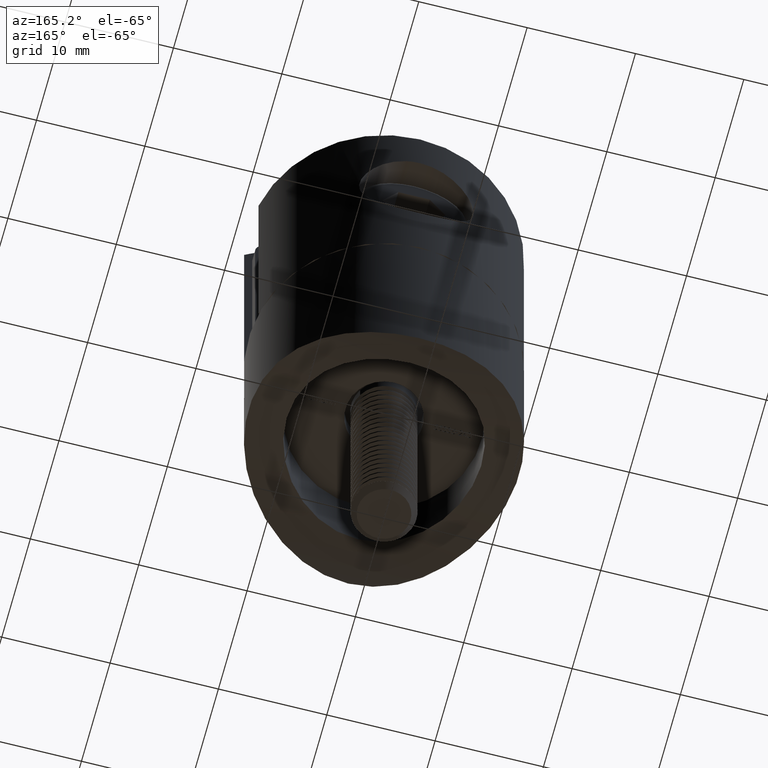
[diagram: clean part render]
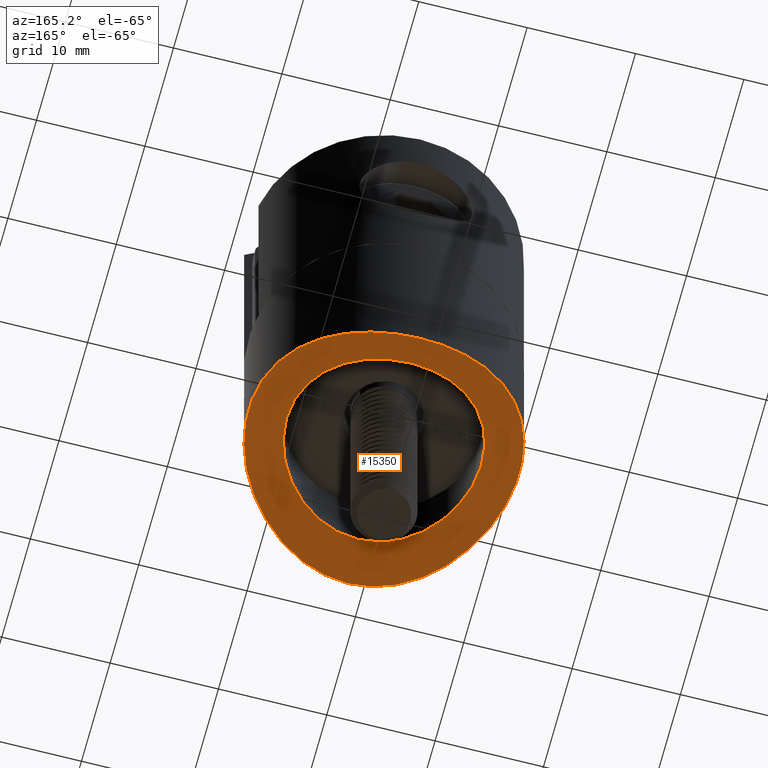
[diagram: same view with one face highlighted and labeled with its STEP entity id]
A machine part, auxiliary view. The second image highlights one B-rep face of the part: STEP entity #15350.
In plain terms, the highlighted cylindrical surface (partial cylindrical patch) has radius 21.2 mm, axis along (1, 0, 0).
Its self-contained STEP definition (entity closure, byte-faithful):
#155 = CARTESIAN_POINT ( 'NONE',  ( -12.41822876017532984, -1.652545722798589134, -0.04853384307513768092 ) ) ;
#570 = CARTESIAN_POINT ( 'NONE',  ( 6.505213034913026604E-16, -12.50000000000000000, -4.077208171562672234 ) ) ;
#647 = CARTESIAN_POINT ( 'NONE',  ( 12.48106748370101116, 0.8054532927876552062, -0.01118350309362116900 ) ) ;
#724 = CARTESIAN_POINT ( 'NONE',  ( 12.05574095154471159, -3.329120898588413979, -0.2591194088304896725 ) ) ;
#809 = CARTESIAN_POINT ( 'NONE',  ( 9.368375596618125911, -8.285220845044319660, -1.683172826441550862 ) ) ;
#941 = EDGE_LOOP ( 'NONE', ( #7457 ) ) ;
#948 = DIRECTION ( 'NONE',  ( 0.000000000000000000, 0.000000000000000000, -1.000000000000000000 ) ) ;
#1046 = CARTESIAN_POINT ( 'NONE',  ( -11.18372281719146599, 5.643309527002701387, -0.7501887332159620225 ) ) ;
#1178 = CARTESIAN_POINT ( 'NONE',  ( -8.546432821536305013, -9.130588656031044081, -2.064470097487321354 ) ) ;
#1254 = CARTESIAN_POINT ( 'NONE',  ( -2.086642909512068655, -12.33156205190913113, -3.955209103211670296 ) ) ;
#1288 = CARTESIAN_POINT ( 'NONE',  ( 5.491527681049623411, -7.136393349933625174, -1.236275164817629335 ) ) ;
#1443 = CARTESIAN_POINT ( 'NONE',  ( 4.523650702319244488, 7.786055058421185393, -1.480978259992662416 ) ) ;
#1522 = CARTESIAN_POINT ( 'NONE',  ( -3.998611255628528927, 8.068293523425873914, -1.594769083929055142 ) ) ;
#1600 = CARTESIAN_POINT ( 'NONE',  ( -8.707229325129510755, -2.354678229249710153, -0.1228942172591542120 ) ) ;
#1644 = AXIS2_PLACEMENT_3D ( 'NONE', #8045, #20500, #948 ) ;
#1672 = CARTESIAN_POINT ( 'NONE',  ( -8.533584350906092908, -2.919603497746501741, -0.1947885813183747594 ) ) ;
#1748 = CARTESIAN_POINT ( 'NONE',  ( -0.2839722160764792669, 9.000400974029082235, -2.005397047312543091 ) ) ;
#2271 = CARTESIAN_POINT ( 'NONE',  ( -11.80920847800567408, 4.118886920590427714, -0.4000696832098594724 ) ) ;
#2378 = CARTESIAN_POINT ( 'NONE',  ( 4.131024785211030448, 11.80488271887764817, -3.590143210648292893 ) ) ;
#2456 = CARTESIAN_POINT ( 'NONE',  ( 8.269659684127894650, 9.382022416828275979, -2.186865792286954768 ) ) ;
#2536 = CARTESIAN_POINT ( 'NONE',  ( 10.80110207316818816, -6.342979572200273530, -0.9588347506110875829 ) ) ;
#2613 = CARTESIAN_POINT ( 'NONE',  ( 5.593301396689095206, -11.20825000499162805, -3.201227598209253955 ) ) ;
#3055 = CARTESIAN_POINT ( 'NONE',  ( -4.480559060405536087, -11.67646838110314533, -3.504365640275209692 ) ) ;
#3165 = CARTESIAN_POINT ( 'NONE',  ( 2.917802884023282139, -8.519085452557783711, -1.786750800336529554 ) ) ;
#3207 = CARTESIAN_POINT ( 'NONE',  ( -9.393693742237582356, -8.285238113159397955, -1.676182626580184021 ) ) ;
#3243 = CARTESIAN_POINT ( 'NONE',  ( -5.933833905163504063, 6.773075127230494985, -1.110108331659413361 ) ) ;
#3281 = CARTESIAN_POINT ( 'NONE',  ( -11.83994799044254798, -4.091362508897725903, -0.3840295396466786304 ) ) ;
#3313 = CARTESIAN_POINT ( 'NONE',  ( -5.256110834363022732, -7.311472419907169673, -1.299942953120396538 ) ) ;
#3390 = CARTESIAN_POINT ( 'NONE',  ( -4.532705707074542012, -7.796916004019784907, -1.482807033181334555 ) ) ;
#3466 = CARTESIAN_POINT ( 'NONE',  ( -1.491469006224786842, -8.880462410946027063, -1.949506213162342627 ) ) ;
#3505 = CARTESIAN_POINT ( 'NONE',  ( -8.242993244431671584, 9.430799355707717879, -2.203067516403551807 ) ) ;
#3539 = CARTESIAN_POINT ( 'NONE',  ( -8.702862009132207533, 2.369100941744510358, -0.1246985401672113247 ) ) ;
#3574 = VERTEX_POINT ( 'NONE', #6882 ) ;
#4084 = CARTESIAN_POINT ( 'NONE',  ( 11.68640455965283920, 4.454949791073032905, -0.4697153782734217464 ) ) ;
#4160 = CARTESIAN_POINT ( 'NONE',  ( 6.300445486796585115, -10.82614136634492219, -2.965394789012346877 ) ) ;
#4242 = CARTESIAN_POINT ( 'NONE',  ( 2.937046760329241835, 12.15715828628347417, -3.831807272722342006 ) ) ;
#4316 = CARTESIAN_POINT ( 'NONE',  ( 12.39903987740901670, 1.640003249381589701, -0.05939714936084879854 ) ) ;
#4393 = CARTESIAN_POINT ( 'NONE',  ( 11.21002534183689647, 5.591050753373651538, -0.7357564511096464921 ) ) ;
#4644 = CARTESIAN_POINT ( 'NONE',  ( 8.075779872960259453, -4.015580886328729449, -0.3765727242498756455 ) ) ;
#4805 = CARTESIAN_POINT ( 'NONE',  ( 2.062165950460747688, -8.765548746403904801, -1.896910775638060098 ) ) ;
#4849 = CARTESIAN_POINT ( 'NONE',  ( -8.250334600383300909, -9.399126279219142788, -2.195298408733290518 ) ) ;
#4883 = CARTESIAN_POINT ( 'NONE',  ( 0.6022301676324365305, -8.999999999999998224, -2.005209039950443639 ) ) ;
#4917 = CARTESIAN_POINT ( 'NONE',  ( -12.05665895762295925, 3.325599062001045603, -0.2585883587864531985 ) ) ;
#4926 = CARTESIAN_POINT ( 'NONE',  ( -7.629375070975932260, -9.909804834473819213, -2.456520453009731764 ) ) ;
#4959 = CARTESIAN_POINT ( 'NONE',  ( 8.415055338208810909, -3.205093018567958918, -0.2418898255805831121 ) ) ;
#5005 = CARTESIAN_POINT ( 'NONE',  ( -10.81529640315649843, -6.319962272150770666, -0.9513266711968723088 ) ) ;
#5039 = CARTESIAN_POINT ( 'NONE',  ( -8.924876651340714062, 1.198462509687670652, -0.03180013284765392800 ) ) ;
#5114 = CARTESIAN_POINT ( 'NONE',  ( -0.5808486025061181390, 8.986205239822108837, -1.998720092987608332 ) ) ;
#5193 = CARTESIAN_POINT ( 'NONE',  ( 4.777164185214713754, 7.633095921920670435, -1.421066813696615583 ) ) ;
#5275 = CARTESIAN_POINT ( 'NONE',  ( -7.141587104885534387, 5.507888469158014999, -0.7219518028728219017 ) ) ;
#5350 = CARTESIAN_POINT ( 'NONE',  ( -8.999731393797212320, 0.3048979933382154894, -0.0001140308981456247171 ) ) ;
#5908 = CARTESIAN_POINT ( 'NONE',  ( 11.66462809805585188, -4.511375195985528386, -0.4819869156375445329 ) ) ;
#5984 = CARTESIAN_POINT ( 'NONE',  ( 9.126169483825913531, 8.551099590638671089, -1.798593104265829190 ) ) ;
#6061 = CARTESIAN_POINT ( 'NONE',  ( 9.099289853513122139, -8.579684125939735395, -1.811232351458165191 ) ) ;
#6139 = CARTESIAN_POINT ( 'NONE',  ( -4.062392419382787168, 11.82874411193930975, -3.606179466901592523 ) ) ;
#6220 = CARTESIAN_POINT ( 'NONE',  ( 9.394115780166798046, 8.255981417790513532, -1.670787631124504458 ) ) ;
#6461 = CARTESIAN_POINT ( 'NONE',  ( 7.131813691955861678, -5.497450429022885388, -0.7238557494452504404 ) ) ;
#6576 = CARTESIAN_POINT ( 'NONE',  ( -6.308790992747932869, -10.82083566512655715, -2.962347893959514700 ) ) ;
#6762 = CARTESIAN_POINT ( 'NONE',  ( 8.689940755913463377, -2.360735361079839834, -0.1299090374202212239 ) ) ;
#6805 = CARTESIAN_POINT ( 'NONE',  ( -2.898264919438248377, -12.16641120991132219, -3.838298643699025181 ) ) ;
#6838 = CARTESIAN_POINT ( 'NONE',  ( -4.766181298621796181, 7.639907694094672408, -1.423707296290865898 ) ) ;
#6882 = CARTESIAN_POINT ( 'NONE',  ( 0.000000000000000000, -12.50000000000000000, -4.077208171562672234 ) ) ;
#6911 = CARTESIAN_POINT ( 'NONE',  ( 6.774246431175879657, 5.953767838570619197, -0.8486310126756944072 ) ) ;
#6993 = CARTESIAN_POINT ( 'NONE',  ( -6.777821217551544208, -5.950024793402122647, -0.8474821705669594030 ) ) ;
#7069 = CARTESIAN_POINT ( 'NONE',  ( 8.882734505041490536, 1.478072324521908509, -0.04958208143098195159 ) ) ;
#7144 = CARTESIAN_POINT ( 'NONE',  ( -2.359308650723927592, -8.705287611884930499, -1.869338804076950522 ) ) ;
#7271 = FACE_BOUND ( 'NONE', #8443, .T. ) ;
#7286 = CARTESIAN_POINT ( 'NONE',  ( -11.66482277760312236, 4.511103987323228814, -0.4818830095078822096 ) ) ;
#7457 = ORIENTED_EDGE ( 'NONE', *, *, #17315, .F. ) ;
#7681 = CARTESIAN_POINT ( 'NONE',  ( 3.296557528382275226, -12.08579476294287680, -3.781212110769386125 ) ) ;
#7833 = CARTESIAN_POINT ( 'NONE',  ( 1.715989125616451672, 12.40952643742747696, -4.010290332956925496 ) ) ;
#7914 = CARTESIAN_POINT ( 'NONE',  ( -6.276656481027552026, 10.81743948219729035, -2.966152346938727646 ) ) ;
#7992 = CARTESIAN_POINT ( 'NONE',  ( 3.342676321174951504, 12.05185200682202762, -3.758234740898722226 ) ) ;
#8045 = CARTESIAN_POINT ( 'NONE',  ( -12.50002500000000261, 0.000000000000000000, -21.19999999999999929 ) ) ;
#8395 = CARTESIAN_POINT ( 'NONE',  ( 6.566661741195221502, -6.161404844027701166, -0.9139654870621791716 ) ) ;
#8443 = EDGE_LOOP ( 'NONE', ( #14993 ) ) ;
#8467 = CARTESIAN_POINT ( 'NONE',  ( 5.254898464817230774, -7.312433258681627635, -1.300285243842550065 ) ) ;
#8539 = CARTESIAN_POINT ( 'NONE',  ( 1.198140283409451667, 8.939971974155945134, -1.976733770865096274 ) ) ;
#8611 = CARTESIAN_POINT ( 'NONE',  ( -6.772806331197206653, 5.955765860730119599, -0.8491634260650989807 ) ) ;
#8680 = CARTESIAN_POINT ( 'NONE',  ( 7.799994965017367221, 4.527725506764324059, -0.4831397513770585572 ) ) ;
#8761 = CARTESIAN_POINT ( 'NONE',  ( -6.151986061130801708, 6.575604964608817937, -1.044396724207855565 ) ) ;
#8774 = CARTESIAN_POINT ( 'NONE',  ( -10.79649406620353425, 6.350638802791213067, -0.9612875244032705879 ) ) ;
#8835 = CARTESIAN_POINT ( 'NONE',  ( -1.474070503388013931, 8.883445497185361361, -1.950882716875977474 ) ) ;
#9445 = CARTESIAN_POINT ( 'NONE',  ( 11.80702830373929579, -4.125290108934088096, -0.4013099593227119621 ) ) ;
#9459 = FACE_OUTER_BOUND ( 'NONE', #941, .T. ) ;
#9492 = B_SPLINE_CURVE_WITH_KNOTS ( 'NONE', 3,
 ( #22388, #4883, #15442, #4805, #13541, #3165, #17230, #15287, #19110, #8467, #1288, #20694, #13755, #8395, #20930, #6461, #13829, #18879, #4644, #4959, #17392, #6762, #22466, #19191, #20616, #9938, #10638, #21308, #7069, #23091, #15959, #15737, #8680, #13903, #6911, #19342, #21162, #5193, #1443, #19423, #15663, #10326, #19504, #8539, #12450, #1748, #5114, #19270, #8835, #10407, #12225, #17544, #1522, #21230, #6838, #15887, #15813, #3243, #8761, #8611, #5275, #21009, #14201, #17697, #22854, #10565, #3539, #23013, #5039, #12378, #5350, #17615, #17772, #1600, #1672, #10479, #17466, #22939, #6993, #21085, #14133, #13974, #3313, #3390, #12300, #14049, #7144, #3466, #22778, #12152, #18077, #11013 ),
 .UNSPECIFIED., .T., .F.,
 ( 4, 2, 2, 2, 2, 2, 2, 2, 2, 2, 2, 2, 2, 2, 2, 2, 2, 2, 2, 2, 2, 2, 2, 2, 2, 2, 2, 2, 2, 2, 2, 2, 2, 2, 2, 2, 2, 2, 2, 2, 2, 2, 2, 2, 2, 4 ),
 ( 0.000000000000000000, 0.001779121269481607863, 0.002668681904222411794, 0.003558242538963215726, 0.005337363808444827926, 0.006226924443185634025, 0.007116485077926439258, 0.008006045712667244491, 0.008895606347408048856, 0.01067472761688965932, 0.01156428825163046542, 0.01245384888637127152, 0.01423297015585288025, 0.01512253079059368635, 0.01601209142533448898, 0.01779121269481609771, 0.01957033396429770991, 0.02134945523377931864, 0.02312857650326093084, 0.02401813713800173694, 0.02490769777274253957, 0.02668681904222414830, 0.02846594031170576050, 0.02935550094644656660, 0.03024506158118737270, 0.03202418285066898490, 0.03291374348540979100, 0.03380330412015059016, 0.03469286475489139626, 0.03558242538963219542, 0.03736154665911380762, 0.03825110729385461372, 0.03914066792859541288, 0.04091978919807702508, 0.04180934983281783118, 0.04269891046755863034, 0.04447803173704023560, 0.04625715300652184780, 0.04803627427600345307, 0.04981539554548506527, 0.05070495618022586443, 0.05159451681496667053, 0.05337363808444827579, 0.05515275935392988105, 0.05604231998867068715, 0.05693188062341148631 ),
 .UNSPECIFIED. ) ;
#9522 = CARTESIAN_POINT ( 'NONE',  ( 8.563940322642450198, 9.114120901477821945, -2.056627937165631081 ) ) ;
#9595 = CARTESIAN_POINT ( 'NONE',  ( 9.880977930886432503, -7.666656435487514187, -1.432000443294614955 ) ) ;
#9678 = CARTESIAN_POINT ( 'NONE',  ( 12.33739488078822077, 2.052092117735703436, -0.09557154665816351702 ) ) ;
#9760 = CARTESIAN_POINT ( 'NONE',  ( 12.17402486957016627, 2.866271616448730075, -0.1906575680570648246 ) ) ;
#9938 = CARTESIAN_POINT ( 'NONE',  ( 9.000361350476719480, 0.2865226143655678626, 0.0001534034071165110301 ) ) ;
#10135 = CARTESIAN_POINT ( 'NONE',  ( -3.299432798070931483, -12.06383630310225463, -3.766528421660189530 ) ) ;
#10326 = CARTESIAN_POINT ( 'NONE',  ( 2.933994583505462828, 8.528391803012054240, -1.789521855624832902 ) ) ;
#10407 = CARTESIAN_POINT ( 'NONE',  ( -2.349133148422243522, 8.708359458168317246, -1.870722831128997621 ) ) ;
#10479 = CARTESIAN_POINT ( 'NONE',  ( -8.080867107885591594, -4.005712576156175153, -0.3746006500525713712 ) ) ;
#10565 = CARTESIAN_POINT ( 'NONE',  ( -8.529688198176652136, 2.930983491255338524, -0.1963782375830764593 ) ) ;
#10638 = CARTESIAN_POINT ( 'NONE',  ( 8.985797788739244396, 0.5875516269330826047, -0.006042185908242078164 ) ) ;
#11013 = CARTESIAN_POINT ( 'NONE',  ( -1.355252715606880543E-16, -9.000000000000001776, -2.005209039950443195 ) ) ;
#11260 = CARTESIAN_POINT ( 'NONE',  ( -7.627862284773128998, 9.935483140635625432, -2.465260748081573805 ) ) ;
#11332 = CARTESIAN_POINT ( 'NONE',  ( 10.14643006982015905, 7.311902330935454053, -1.297671317703807503 ) ) ;
#11417 = CARTESIAN_POINT ( 'NONE',  ( 12.41059106112181887, -1.707298504454105359, -0.05303130453784454107 ) ) ;
#11495 = CARTESIAN_POINT ( 'NONE',  ( 11.82867054258223760, 4.062648745508023573, -0.3890060630332999869 ) ) ;
#11578 = CARTESIAN_POINT ( 'NONE',  ( -2.864745459774426628, 12.17438402735407088, -3.843894938962579833 ) ) ;
#11961 = CARTESIAN_POINT ( 'NONE',  ( 6.505213034913026604E-16, -12.50000000000000000, -4.077208171562672234 ) ) ;
#12152 = CARTESIAN_POINT ( 'NONE',  ( -0.6034601397220100694, -8.984718648477105774, -1.998023013587530983 ) ) ;
#12192 = CARTESIAN_POINT ( 'NONE',  ( -7.305735025602015931, -10.15069297172143692, -2.586321107798049468 ) ) ;
#12225 = CARTESIAN_POINT ( 'NONE',  ( -2.912700169554778729, 8.536066545482773549, -1.792880292925770558 ) ) ;
#12300 = CARTESIAN_POINT ( 'NONE',  ( -4.016880884885591030, -8.075678375321285074, -1.596806480158379893 ) ) ;
#12378 = CARTESIAN_POINT ( 'NONE',  ( -8.984815514353625687, 0.6023502318451293691, -0.006459186793925699062 ) ) ;
#12450 = CARTESIAN_POINT ( 'NONE',  ( 0.6052519994996067298, 8.999172276844692675, -2.004820939877711261 ) ) ;
#12944 = CARTESIAN_POINT ( 'NONE',  ( -12.16013246386163438, 2.924489711231848865, -0.1987092184303989595 ) ) ;
#13068 = CARTESIAN_POINT ( 'NONE',  ( 1.675843343643766747, -12.41472012078711273, -4.014094993148942692 ) ) ;
#13147 = CARTESIAN_POINT ( 'NONE',  ( 12.50129113565381367, 0.3800900245422177970, 0.0007612801658150452093 ) ) ;
#13223 = CARTESIAN_POINT ( 'NONE',  ( -4.448026940979907806, 11.68891677482752733, -3.512595682971376476 ) ) ;
#13303 = CARTESIAN_POINT ( 'NONE',  ( 8.253902182121716891, -9.421004241829127324, -2.198267405428099508 ) ) ;
#13476 = CARTESIAN_POINT ( 'NONE',  ( -9.895106780779407529, 7.679958276062376576, -1.427434745300924401 ) ) ;
#13512 = EDGE_CURVE ( 'NONE', #18321, #18321, #9492, .T. ) ;
#13541 = CARTESIAN_POINT ( 'NONE',  ( 2.349217114833195730, -8.693075955343489980, -1.864036308711042311 ) ) ;
#13583 = CARTESIAN_POINT ( 'NONE',  ( 0.000000000000000000, -9.000000000000000000, -2.005209039950443195 ) ) ;
#13755 = CARTESIAN_POINT ( 'NONE',  ( 6.156745591378429694, -6.571030345259963212, -1.042925159791038503 ) ) ;
#13829 = CARTESIAN_POINT ( 'NONE',  ( 7.307607166974760204, -5.261681691625373247, -0.6617966619827865271 ) ) ;
#13903 = CARTESIAN_POINT ( 'NONE',  ( 7.150322684329967871, 5.496644906564070787, -0.7188991605255533601 ) ) ;
#13941 = CARTESIAN_POINT ( 'NONE',  ( -0.8455510957058758326, -12.47835349945689742, -4.061347857198805755 ) ) ;
#13974 = CARTESIAN_POINT ( 'NONE',  ( -5.489248663871811651, -7.138145225870887067, -1.236902390178999278 ) ) ;
#14049 = CARTESIAN_POINT ( 'NONE',  ( -2.922138815264540224, -8.533054436092363915, -1.791528669452689515 ) ) ;
#14133 = CARTESIAN_POINT ( 'NONE',  ( -5.939641931502984917, -6.767985068317845077, -1.108390767290665435 ) ) ;
#14201 = CARTESIAN_POINT ( 'NONE',  ( -7.780812614444888808, 4.532780756239584541, -0.4885476217722979353 ) ) ;
#14460 = CARTESIAN_POINT ( 'NONE',  ( -12.49788895021744395, 0.8787941327055598384, -0.001244720344141975275 ) ) ;
#14703 = B_SPLINE_CURVE_WITH_KNOTS ( 'NONE', 3,
 ( #570, #20198, #13068, #7681, #16815, #2613, #4160, #20288, #13303, #6061, #809, #9595, #16665, #2536, #18399, #5908, #9445, #724, #14966, #11417, #15047, #13147, #647, #4316, #9678, #9760, #18324, #11495, #4084, #4393, #18628, #11332, #14811, #6220, #5984, #9522, #2456, #21997, #20449, #14887, #16582, #18473, #2378, #7992, #4242, #7833, #20123, #22221, #22153, #22074, #16747, #11578, #20365, #6139, #13223, #16510, #18548, #7914, #21923, #11260, #3505, #21420, #13476, #8774, #1046, #7286, #2271, #4917, #12944, #17086, #14460, #21427, #155, #15560, #3281, #17434, #5005, #15483, #3207, #1178, #4849, #4926, #12192, #6576, #15632, #3055, #22819, #10135, #6805, #1254, #19234, #13941, #22586, #11961 ),
 .UNSPECIFIED., .T., .F.,
 ( 4, 2, 2, 2, 2, 2, 2, 2, 2, 2, 2, 2, 2, 2, 2, 2, 2, 2, 2, 2, 2, 2, 2, 2, 2, 2, 2, 2, 2, 2, 2, 2, 2, 2, 2, 2, 2, 2, 2, 2, 2, 2, 2, 2, 2, 2, 4 ),
 ( 0.000000000000000000, 0.002500575037280142621, 0.005001150074560285243, 0.007501725111840427430, 0.01000230014912057049, 0.01125258766776064158, 0.01250287518640071441, 0.01500345022368086007, 0.01625373774232093116, 0.01750402526096100225, 0.02000460029824114444, 0.02125488781688121900, 0.02250517533552128663, 0.02375546285416135772, 0.02500575037280143229, 0.02750632541008157447, 0.02875661292872164210, 0.03000690044736170625, 0.03125718796600177041, 0.03250747548464183456, 0.03500805052192196287, 0.03625833804056202703, 0.03750862555920209812, 0.04000920059648222643, 0.04125948811512229059, 0.04250977563376235474, 0.04376006315240241890, 0.04501035067104248305, 0.04626063818968256108, 0.04751092570832263218, 0.05001150074560276743, 0.05251207578288289574, 0.05501265082016303098, 0.05626293833880310208, 0.05751322585744317317, 0.06001380089472330148, 0.06251437593200344367, 0.06501495096928357198, 0.06751552600656371417, 0.07001610104384384248, 0.07126638856248392051, 0.07251667608112398467, 0.07501725111840412685, 0.07626753863704417713, 0.07751782615568424128, 0.07876811367432430544, 0.08001840119296436959 ),
 .UNSPECIFIED. ) ;
#14811 = CARTESIAN_POINT ( 'NONE',  ( 9.903714983647256886, 7.637216114839357139, -1.420609338637857544 ) ) ;
#14887 = CARTESIAN_POINT ( 'NONE',  ( 6.332330704725793957, 10.80722643487085044, -2.954200888271471204 ) ) ;
#14966 = CARTESIAN_POINT ( 'NONE',  ( 12.15987681657326291, -2.925629073069793140, -0.1988575828753865737 ) ) ;
#14993 = ORIENTED_EDGE ( 'NONE', *, *, #13512, .T. ) ;
#15047 = CARTESIAN_POINT ( 'NONE',  ( 12.49722262022036645, -0.8811473890249225116, -0.001637600509032404025 ) ) ;
#15287 = CARTESIAN_POINT ( 'NONE',  ( 4.012037878863900175, -8.077715715060882928, -1.597672808785786547 ) ) ;
#15350 = ADVANCED_FACE ( 'NONE', ( #7271, #9459 ), #16112, .F. ) ;
#15442 = CARTESIAN_POINT ( 'NONE',  ( 1.192762043537304750, -8.940179620051699416, -1.976847759062597021 ) ) ;
#15483 = CARTESIAN_POINT ( 'NONE',  ( -9.904348073823600274, -7.669188264874296834, -1.422885800605119266 ) ) ;
#15560 = CARTESIAN_POINT ( 'NONE',  ( -12.08932393936481375, -3.285050927320051439, -0.2399458884670010450 ) ) ;
#15632 = CARTESIAN_POINT ( 'NONE',  ( -5.604583299272048791, -11.20267554811152877, -3.197732988436122525 ) ) ;
#15663 = CARTESIAN_POINT ( 'NONE',  ( 3.743000991661146859, 8.189956734736412614, -1.645470069114854939 ) ) ;
#15737 = CARTESIAN_POINT ( 'NONE',  ( 8.077845520338664542, 4.012651566003439640, -0.3757943717603891565 ) ) ;
#15813 = CARTESIAN_POINT ( 'NONE',  ( -5.483223177737658105, 7.142772226264599844, -1.238559700049899126 ) ) ;
#15887 = CARTESIAN_POINT ( 'NONE',  ( -5.249737311130735939, 7.316073530914035672, -1.301632962292481155 ) ) ;
#15959 = CARTESIAN_POINT ( 'NONE',  ( 8.535217117214013882, 2.915995473697133189, -0.1941464578386157547 ) ) ;
#16112 = CYLINDRICAL_SURFACE ( 'NONE', #1644, 21.19999999999999929 ) ;
#16510 = CARTESIAN_POINT ( 'NONE',  ( -5.199138297438084422, 11.37473867834509811, -3.308930528270616289 ) ) ;
#16582 = CARTESIAN_POINT ( 'NONE',  ( 5.629766700527908618, 11.18969624354877546, -3.189663301510352156 ) ) ;
#16665 = CARTESIAN_POINT ( 'NONE',  ( 10.12445695628423259, -7.342150250603349804, -1.308862027923842319 ) ) ;
#16747 = CARTESIAN_POINT ( 'NONE',  ( -2.050549075641068697, 12.33765137630253150, -3.959571703345564408 ) ) ;
#16815 = CARTESIAN_POINT ( 'NONE',  ( 4.095605162789546227, -11.83790129368928845, -3.608957702662174416 ) ) ;
#17086 = CARTESIAN_POINT ( 'NONE',  ( -12.41045875454616088, 1.707735325148041383, -0.05310759681682414302 ) ) ;
#17230 = CARTESIAN_POINT ( 'NONE',  ( 3.197972917069191290, -8.417805771125099312, -1.742463500720283776 ) ) ;
#17315 = EDGE_CURVE ( 'NONE', #3574, #3574, #14703, .T. ) ;
#17392 = CARTESIAN_POINT ( 'NONE',  ( 8.515469180634770652, -2.928297529281811862, -0.2012648429377807413 ) ) ;
#17434 = CARTESIAN_POINT ( 'NONE',  ( -11.20333342658419262, -5.604367558287003170, -0.7394296839717556802 ) ) ;
#17466 = CARTESIAN_POINT ( 'NONE',  ( -7.798082359429831634, -4.531143009220563123, -0.4838708902360288611 ) ) ;
#17544 = CARTESIAN_POINT ( 'NONE',  ( -3.729967871242134247, 8.195999223167364178, -1.647998092720919683 ) ) ;
#17615 = CARTESIAN_POINT ( 'NONE',  ( -9.000526453280954797, -0.5856921983028029466, 0.0002234942441280509166 ) ) ;
#17697 = CARTESIAN_POINT ( 'NONE',  ( -8.061124604704579255, 4.013155420945844654, -0.3816200301977675235 ) ) ;
#17772 = CARTESIAN_POINT ( 'NONE',  ( -8.942818534641485684, -1.177433114945631187, -0.02448232037810179826 ) ) ;
#18077 = CARTESIAN_POINT ( 'NONE',  ( -0.3011150838162163224, -9.000000000000003553, -2.005209039950443195 ) ) ;
#18321 = VERTEX_POINT ( 'NONE', #13583 ) ;
#18324 = CARTESIAN_POINT ( 'NONE',  ( 12.07229783247374932, 3.268361466909745605, -0.2495728731974959647 ) ) ;
#18399 = CARTESIAN_POINT ( 'NONE',  ( 11.18673559650111748, -5.636591700097207891, -0.7485178215009421487 ) ) ;
#18473 = CARTESIAN_POINT ( 'NONE',  ( 4.513568984186689725, 11.66366532468690309, -3.495924376074880602 ) ) ;
#18548 = CARTESIAN_POINT ( 'NONE',  ( -5.564610046012330891, 11.20038073315566152, -3.198842575589641246 ) ) ;
#18628 = CARTESIAN_POINT ( 'NONE',  ( 10.82435123611145755, 6.303907974649717971, -0.9464285878192922885 ) ) ;
#18879 = CARTESIAN_POINT ( 'NONE',  ( 7.799281068273501205, -4.529556461873098350, -0.4834491150285299965 ) ) ;
#19110 = CARTESIAN_POINT ( 'NONE',  ( 4.525699097909321900, -7.801320390038434915, -1.484505830986998287 ) ) ;
#19191 = CARTESIAN_POINT ( 'NONE',  ( 8.940039705118065783, -1.195367113660797509, -0.02565397850720463682 ) ) ;
#19234 = CARTESIAN_POINT ( 'NONE',  ( -1.676188553740994402, -12.39413791456126823, -4.000347425480158314 ) ) ;
#19270 = CARTESIAN_POINT ( 'NONE',  ( -1.175557709462170530, 8.927896380613052685, -1.971539299863848571 ) ) ;
#19342 = CARTESIAN_POINT ( 'NONE',  ( 5.952246384174826765, 6.775583308319270692, -1.107288834857335980 ) ) ;
#19423 = CARTESIAN_POINT ( 'NONE',  ( 4.006978217306455647, 8.064130121432254938, -1.593055384883215853 ) ) ;
#19504 = CARTESIAN_POINT ( 'NONE',  ( 2.372073640349043444, 8.702408039283348273, -1.868027577799807881 ) ) ;
#20123 = CARTESIAN_POINT ( 'NONE',  ( 0.8860142871116971630, 12.49732296905760087, -4.075253896514919205 ) ) ;
#20198 = CARTESIAN_POINT ( 'NONE',  ( 0.8477672188158404953, -12.49999999999999645, -4.077208171562672234 ) ) ;
#20288 = CARTESIAN_POINT ( 'NONE',  ( 7.639919466523419800, -9.926357879968705333, -2.460373981227746754 ) ) ;
#20365 = CARTESIAN_POINT ( 'NONE',  ( -3.268895922307678337, 12.07213895231154943, -3.772287317817748065 ) ) ;
#20449 = CARTESIAN_POINT ( 'NONE',  ( 7.330211040147317725, 10.13307184169975983, -2.576703107103116341 ) ) ;
#20500 = DIRECTION ( 'NONE',  ( 1.000000000000000000, -0.000000000000000000, -0.000000000000000000 ) ) ;
#20616 = CARTESIAN_POINT ( 'NONE',  ( 8.999256637721659402, -0.6064474908965856725, -0.0003155781286611690733 ) ) ;
#20694 = CARTESIAN_POINT ( 'NONE',  ( 5.941849588956703343, -6.766048313375105927, -1.107737569877102812 ) ) ;
#20930 = CARTESIAN_POINT ( 'NONE',  ( 6.761680869955751128, -5.946797421235014980, -0.8498146195204697717 ) ) ;
#21009 = CARTESIAN_POINT ( 'NONE',  ( -7.629261748838101376, 4.783214464045441261, -0.5451535292783324937 ) ) ;
#21085 = CARTESIAN_POINT ( 'NONE',  ( -6.157908511444627031, -6.570051494431054628, -1.042585294229898762 ) ) ;
#21162 = CARTESIAN_POINT ( 'NONE',  ( 5.505046255798364818, 7.143967367260362522, -1.236905660156284670 ) ) ;
#21230 = CARTESIAN_POINT ( 'NONE',  ( -4.516112634829500649, 7.790441516584821535, -1.482711630924208546 ) ) ;
#21308 = CARTESIAN_POINT ( 'NONE',  ( 8.926821845496238694, 1.183904790595063039, -0.03097937582801498640 ) ) ;
#21420 = CARTESIAN_POINT ( 'NONE',  ( -9.375404808503565945, 8.305943582281992477, -1.685012900801405422 ) ) ;
#21427 = CARTESIAN_POINT ( 'NONE',  ( -12.50203634204621039, -0.8176763673977106572, 0.001200671014227281839 ) ) ;
#21923 = CARTESIAN_POINT ( 'NONE',  ( -6.624734481196325575, 10.60777639856620347, -2.842953671768742474 ) ) ;
#21997 = CARTESIAN_POINT ( 'NONE',  ( 7.653665026426051732, 9.890956858889902392, -2.446584592508089795 ) ) ;
#22074 = CARTESIAN_POINT ( 'NONE',  ( -1.639093187310727284, 12.39911709150977792, -4.003940952708599177 ) ) ;
#22153 = CARTESIAN_POINT ( 'NONE',  ( -0.8070878136106354184, 12.48091905216837816, -4.063220517841667601 ) ) ;
#22221 = CARTESIAN_POINT ( 'NONE',  ( -0.3850937661071008322, 12.50124907634356042, -4.078120016871397802 ) ) ;
#22388 = CARTESIAN_POINT ( 'NONE',  ( -1.355252715606880543E-16, -9.000000000000001776, -2.005209039950443195 ) ) ;
#22466 = CARTESIAN_POINT ( 'NONE',  ( 8.763926665609215405, -2.069273427123898834, -0.09920462453177261719 ) ) ;
#22586 = CARTESIAN_POINT ( 'NONE',  ( -0.4238836094079162509, -12.50000000000000355, -4.077208171562671346 ) ) ;
#22778 = CARTESIAN_POINT ( 'NONE',  ( -1.198231756554556826, -8.924885096745494906, -1.970140005998573196 ) ) ;
#22819 = CARTESIAN_POINT ( 'NONE',  ( -4.092729325265378471, -11.81828963120920406, -3.599144685167060764 ) ) ;
#22854 = CARTESIAN_POINT ( 'NONE',  ( -8.189008184627283526, 3.745224452304388940, -0.3316270005773435670 ) ) ;
#22939 = CARTESIAN_POINT ( 'NONE',  ( -7.146811310810095463, -5.501311983712253273, -0.7201360180229092744 ) ) ;
#23013 = CARTESIAN_POINT ( 'NONE',  ( -8.879702304195816964, 1.496328371181377959, -0.05085713014948477217 ) ) ;
#23091 = CARTESIAN_POINT ( 'NONE',  ( 8.708199343826663608, 2.349030549496112119, -0.1224868833131500800 ) ) ;